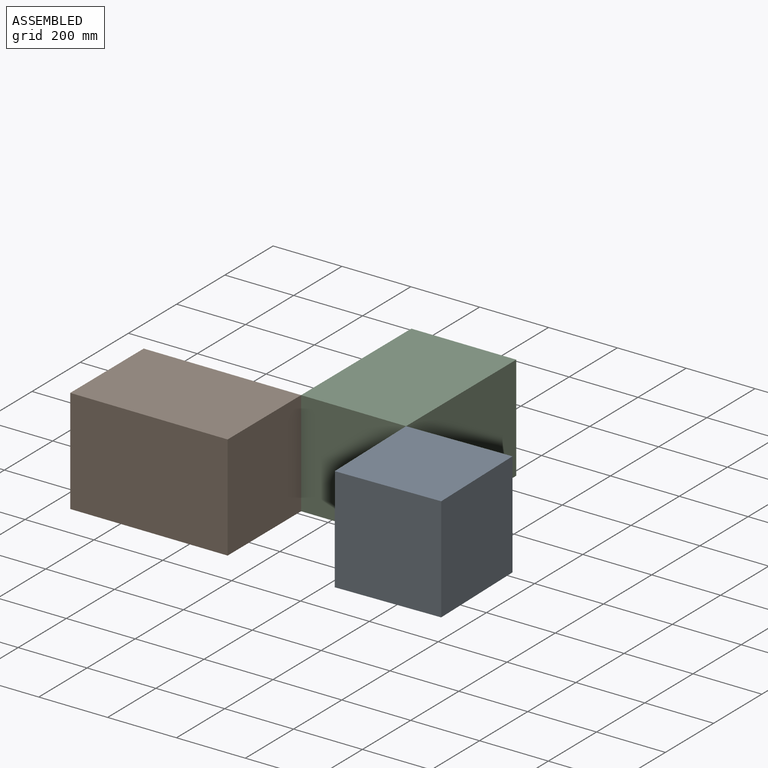
[diagram: assembled view]
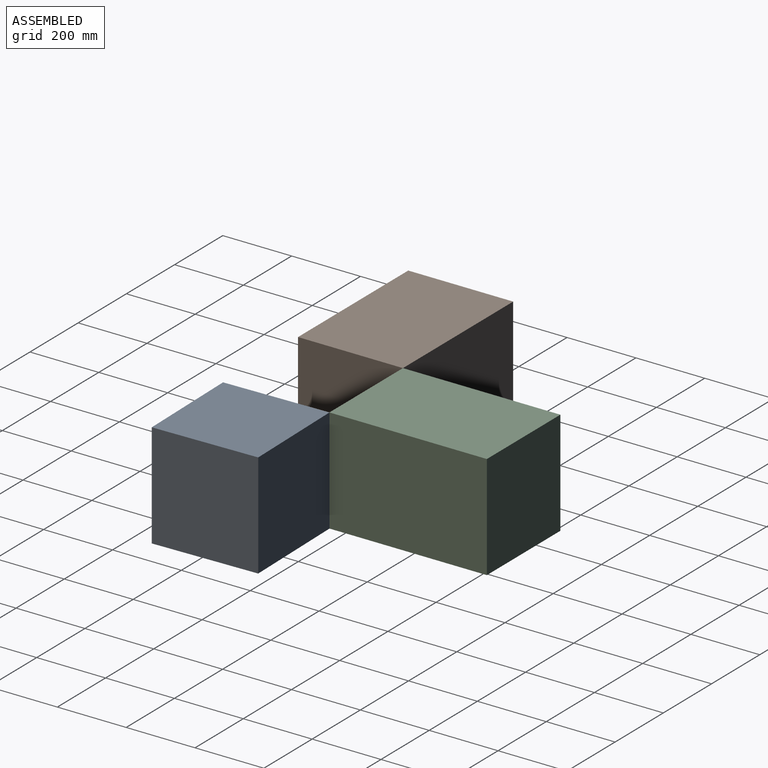
[diagram: assembled view, second angle]
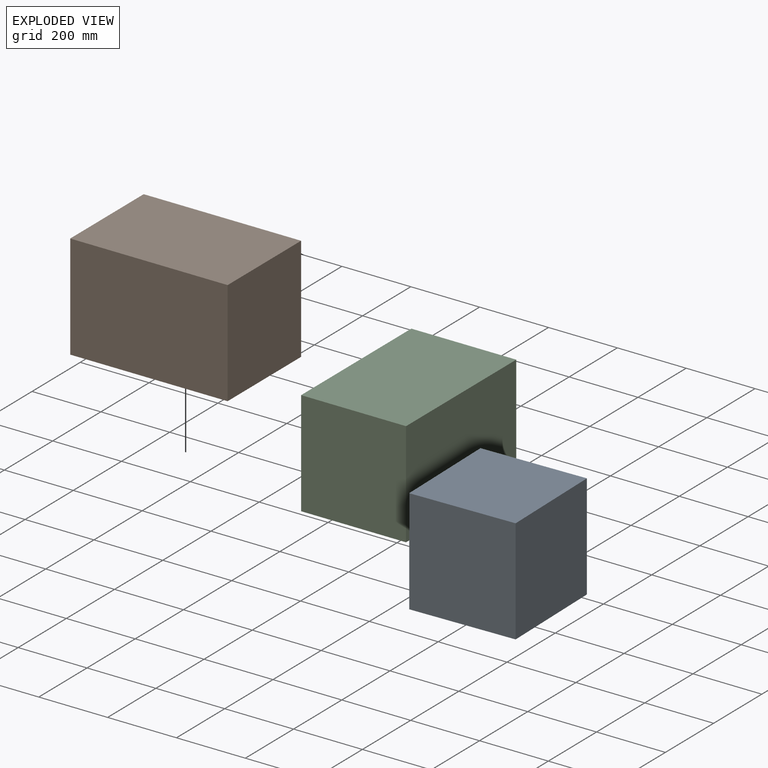
[diagram: exploded view]
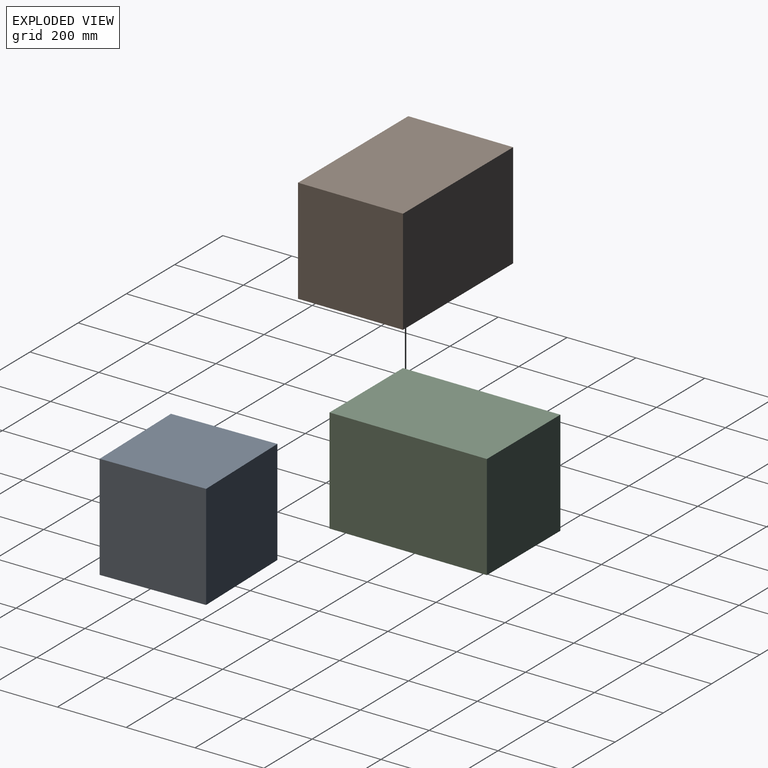
[diagram: exploded view, second angle]
ASSEMBLY  parts=3 mates=2
PART A: 6 faces, bbox 311.1x311.1x304.8 mm
  f0: plane 304.8x304.73mm, normal (0.02,-1,0), area 92903mm2, adj f1,f2,f3,f4
  f1: plane 311.08x311.08mm, normal (0,0,-1), area 92903mm2, adj f0,f2,f4,f5
  f2: plane 304.8x304.73mm, normal (-1,-0.02,0), area 92903mm2, adj f0,f1,f3,f5
  f3: plane 311.08x311.08mm, normal (0,0,1), area 92903mm2, adj f0,f2,f4,f5
  f4: plane 304.8x304.73mm, normal (1,0.02,0), area 92903mm2, adj f0,f1,f3,f5
  f5: plane 304.8x304.73mm, normal (-0.02,1,0), area 92903mm2, adj f1,f2,f3,f4
PART B: 6 faces, bbox 457.2x304.8x304.8 mm
  f0: plane 304.8x304.8mm, normal (-1,0,0), area 92903mm2, adj f1,f3,f4,f5
  f1: plane 457.2x304.8mm, normal (0,0,-1), area 139354.6mm2, adj f0,f2,f4,f5
  f2: plane 304.8x304.8mm, normal (1,0,0), area 92903mm2, adj f1,f3,f4,f5
  f3: plane 457.2x304.8mm, normal (0,0,1), area 139354.6mm2, adj f0,f2,f4,f5
  f4: plane 457.2x304.8mm, normal (0,1,0), area 139354.6mm2, adj f0,f1,f2,f3
  f5: plane 457.2x304.8mm, normal (0,-1,0), area 139354.6mm2, adj f0,f1,f2,f3
PART C: same geometry as B
PLACE A t=(663.34,-322.45,-39.64)mm
PLACE B t=(-120.85,-325.66,-39.64)mm fixed
PLACE C rot(axis=(0,0,1),90deg) t=(641.15,-20.86,-39.64)mm
MATE fastened B.f1 <-> C.f1  axis (0,0,1) through (336.35,-20.86,-39.64)mm
MATE fastened A.f3 <-> C.f3  axis (0,0,1) through (641.15,-20.86,265.16)mm
